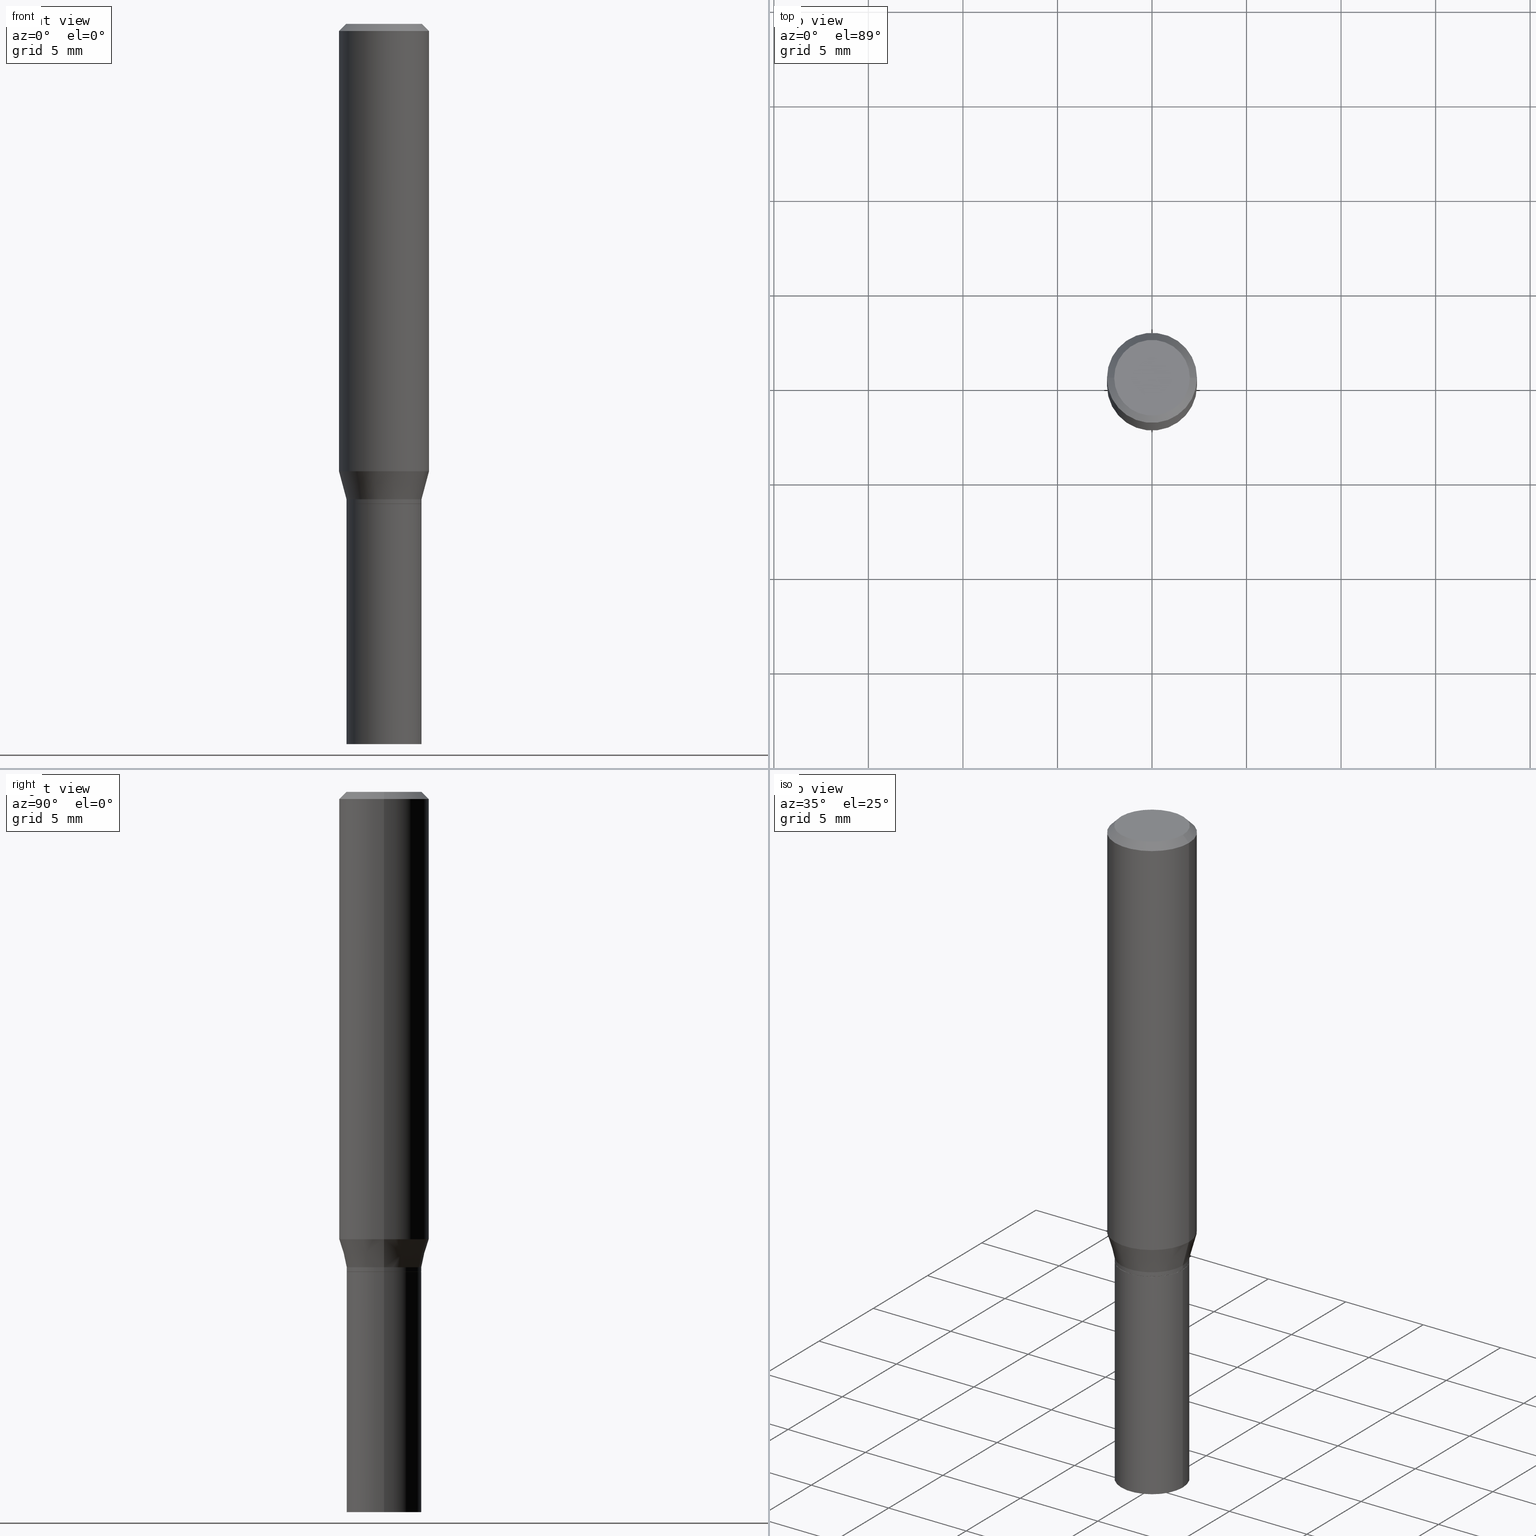
[diagram: canonical four-view strip — front | top / right | iso, engineering-drawing reading convention]
A machine part, canonical four-view strip (front | top / right | iso — engineering-drawing reading convention). The complete STEP part file that produces these views, byte-faithful:
ISO-10303-21;
HEADER;
FILE_DESCRIPTION (( 'STEP AP203' ),
    '1' );
FILE_NAME ('39319.STEP',
    '2024-03-12T18:58:39',
    ( '' ),
    ( '' ),
    'SwSTEP 2.0',
    'SolidWorks 2023',
    '' );
FILE_SCHEMA (( 'CONFIG_CONTROL_DESIGN' ));
ENDSEC;

DATA;
#1 = LOCAL_TIME ( 14, 58, 39.00000000000000000, #391 ) ;
#2 = LINE ( 'NONE', #140, #456 ) ;
#3 = EDGE_LOOP ( 'NONE', ( #298, #323, #429, #314 ) ) ;
#4 = FACE_OUTER_BOUND ( 'NONE', #363, .T. ) ;
#5 = UNCERTAINTY_MEASURE_WITH_UNIT (LENGTH_MEASURE( 1.000000000000000082E-05 ), #236, 'distance_accuracy_value', 'NONE');
#6 = EDGE_LOOP ( 'NONE', ( #394, #420, #331, #185 ) ) ;
#7 = ADVANCED_FACE ( 'NONE', ( #15 ), #55, .T. ) ;
#8 = AXIS2_PLACEMENT_3D ( 'NONE', #157, #133, #269 ) ;
#9 = DIRECTION ( 'NONE',  ( -2.445468806185136597E-29, 3.491481338843145583E-15, 1.000000000000000000 ) ) ;
#10 = VERTEX_POINT ( 'NONE', #403 ) ;
#11 = ORIENTED_EDGE ( 'NONE', *, *, #418, .T. ) ;
#12 = VERTEX_POINT ( 'NONE', #116 ) ;
#13 = DIRECTION ( 'NONE',  ( 2.445468806185136597E-29, -3.491481338843145583E-15, -1.000000000000000000 ) ) ;
#14 = AXIS2_PLACEMENT_3D ( 'NONE', #380, #65, #184 ) ;
#15 = FACE_OUTER_BOUND ( 'NONE', #386, .T. ) ;
#16 = CARTESIAN_POINT ( 'NONE',  ( 0.07810000000000004439, -4.001935910582012553E-15, -0.9900000000000001021 ) ) ;
#17 = PERSON_AND_ORGANIZATION ( #387, #226 ) ;
#18 = CYLINDRICAL_SURFACE ( 'NONE', #50, 0.09375000000000001388 ) ;
#19 = SHAPE_DEFINITION_REPRESENTATION ( #146, #395 ) ;
#20 = LENGTH_MEASURE_WITH_UNIT ( LENGTH_MEASURE( 0.02539999999999999897 ), #117 );
#21 = AXIS2_PLACEMENT_3D ( 'NONE', #176, #423, #455 ) ;
#22 = EDGE_CURVE ( 'NONE', #79, #434, #54, .T. ) ;
#23 = APPROVAL_STATUS ( 'not_yet_approved' ) ;
#24 = DIRECTION ( 'NONE',  ( 1.000000000000000000, -6.982962677686269077E-15, 0.000000000000000000 ) ) ;
#25 = LOCAL_TIME ( 14, 58, 39.00000000000000000, #98 ) ;
#26 = ADVANCED_FACE ( 'NONE', ( #85 ), #407, .T. ) ;
#27 = DIRECTION ( 'NONE',  ( 1.000000000000000000, -6.982962677686265922E-15, 4.876176775795935793E-29 ) ) ;
#28 = APPROVAL_ROLE ( '' ) ;
#29 = APPROVAL_DATE_TIME ( #276, #180 ) ;
#30 = CIRCLE ( 'NONE', #305, 0.09375000000000001388 ) ;
#31 = CONICAL_SURFACE ( 'NONE', #21, 0.09375000000000001388, 0.7853981633974473908 ) ;
#32 = DIRECTION ( 'NONE',  ( 1.000000000000000000, -6.982962677686265922E-15, 4.876176775795935793E-29 ) ) ;
#33 = CARTESIAN_POINT ( 'NONE',  ( 2.421014118123285332E-29, -3.456566525454714328E-15, -0.9900000000000001021 ) ) ;
#34 = AXIS2_PLACEMENT_3D ( 'NONE', #53, #365, #265 ) ;
#35 = DIRECTION ( 'NONE',  ( -2.445468806185136877E-29, 3.491481338843145188E-15, 1.000000000000000000 ) ) ;
#36 = VERTEX_POINT ( 'NONE', #438 ) ;
#37 = DIRECTION ( 'NONE',  ( 1.000000000000000000, -6.982962677686266711E-15, 0.000000000000000000 ) ) ;
#38 = VERTEX_POINT ( 'NONE', #48 ) ;
#39 = EDGE_CURVE ( 'NONE', #354, #114, #30, .T. ) ;
#40 = DIRECTION ( 'NONE',  ( 1.000000000000000000, -6.982962677686266711E-15, 4.876176775795935232E-29 ) ) ;
#41 = LINE ( 'NONE', #313, #302 ) ;
#42 = EDGE_LOOP ( 'NONE', ( #326, #229 ) ) ;
#43 = DIRECTION ( 'NONE',  ( -0.2588190451025214611, 5.211531920934550253E-15, 0.9659258262890679791 ) ) ;
#44 = VERTEX_POINT ( 'NONE', #297 ) ;
#45 = EDGE_CURVE ( 'NONE', #295, #10, #104, .T. ) ;
#46 = ORIENTED_EDGE ( 'NONE', *, *, #231, .T. ) ;
#47 = EDGE_LOOP ( 'NONE', ( #244, #46, #115, #255 ) ) ;
#48 = CARTESIAN_POINT ( 'NONE',  ( -0.07810000000000004439, -2.934801721545085420E-15, -0.9995000000000000551 ) ) ;
#49 = AXIS2_PLACEMENT_3D ( 'NONE', #51, #198, #199 ) ;
#50 = AXIS2_PLACEMENT_3D ( 'NONE', #93, #266, #27 ) ;
#51 = CARTESIAN_POINT ( 'NONE',  ( 2.445468806185136877E-29, -3.491481338843145977E-15, -1.000000000000000222 ) ) ;
#52 = CARTESIAN_POINT ( 'NONE',  ( 3.668203209277705088E-31, -5.237222008264718399E-17, -0.01499999999999999944 ) ) ;
#53 = CARTESIAN_POINT ( 'NONE',  ( 3.668203209277705088E-31, -5.237222008264718399E-17, -0.01499999999999999944 ) ) ;
#54 = LINE ( 'NONE', #169, #446 ) ;
#55 = CONICAL_SURFACE ( 'NONE', #307, 0.09375000000000001388, 0.7853981633974473908 ) ;
#56 = PERSON_AND_ORGANIZATION ( #387, #226 ) ;
#57 = VECTOR ( 'NONE', #275, 39.37007874015748143 ) ;
#58 = DIRECTION ( 'NONE',  ( -2.438088387897960049E-29, 3.491481338843145188E-15, 1.000000000000000000 ) ) ;
#59 = APPROVAL_STATUS ( 'not_yet_approved' ) ;
#60 = LOCAL_TIME ( 14, 58, 39.00000000000000000, #135 ) ;
#61 = PERSON_AND_ORGANIZATION_ROLE ( 'creator' ) ;
#62 = MECHANICAL_CONTEXT ( 'NONE', #171, 'mechanical' ) ;
#63 = CONICAL_SURFACE ( 'NONE', #214, 0.07760000000000000231, 0.7853981633974653764 ) ;
#64 = EDGE_CURVE ( 'NONE', #152, #44, #408, .T. ) ;
#65 = DIRECTION ( 'NONE',  ( -2.445468806185136597E-29, 3.491481338843145583E-15, 1.000000000000000000 ) ) ;
#66 = LOCAL_TIME ( 14, 58, 39.00000000000000000, #448 ) ;
#67 = PERSON_AND_ORGANIZATION ( #387, #226 ) ;
#68 = EDGE_CURVE ( 'NONE', #36, #114, #445, .T. ) ;
#69 = AXIS2_PLACEMENT_3D ( 'NONE', #401, #166, #154 ) ;
#70 = CARTESIAN_POINT ( 'NONE',  ( 2.421014118123285332E-29, -3.456566525454714328E-15, -0.9900000000000001021 ) ) ;
#71 = ORIENTED_EDGE ( 'NONE', *, *, #330, .F. ) ;
#72 = DIRECTION ( 'NONE',  ( 1.000000000000000000, -6.982962677686266711E-15, 4.876176775795936353E-29 ) ) ;
#73 = CARTESIAN_POINT ( 'NONE',  ( -0.07760000000000000231, -2.940100175893308216E-15, -1.000000000000000222 ) ) ;
#74 = ORIENTED_EDGE ( 'NONE', *, *, #262, .T. ) ;
#75 = DIRECTION ( 'NONE',  ( -2.445468806185136597E-29, 3.491481338843145583E-15, 1.000000000000000000 ) ) ;
#76 = ORIENTED_EDGE ( 'NONE', *, *, #219, .F. ) ;
#77 = ORIENTED_EDGE ( 'NONE', *, *, #388, .T. ) ;
#78 = CARTESIAN_POINT ( 'NONE',  ( 0.09375000000000001388, -7.070249711157346819E-16, -0.01499999999999999944 ) ) ;
#79 = VERTEX_POINT ( 'NONE', #230 ) ;
#80 = DIRECTION ( 'NONE',  ( 1.000000000000000000, -6.982962677686265922E-15, 4.876176775795935793E-29 ) ) ;
#81 = DIRECTION ( 'NONE',  ( -2.445468806185136877E-29, 3.491481338843145188E-15, 1.000000000000000000 ) ) ;
#82 = VERTEX_POINT ( 'NONE', #402 ) ;
#83 = ADVANCED_FACE ( 'NONE', ( #202 ), #332, .F. ) ;
#84 = AXIS2_PLACEMENT_3D ( 'NONE', #381, #285, #151 ) ;
#85 = FACE_OUTER_BOUND ( 'NONE', #47, .T. ) ;
#86 = DIRECTION ( 'NONE',  ( 1.000000000000000000, -6.982962677686266711E-15, 4.876176775795936353E-29 ) ) ;
#87 = PLANE ( 'NONE',  #393 ) ;
#88 = DATE_AND_TIME ( #368, #25 ) ;
#89 = ORIENTED_EDGE ( 'NONE', *, *, #173, .T. ) ;
#90 = AXIS2_PLACEMENT_3D ( 'NONE', #142, #344, #95 ) ;
#91 = ADVANCED_FACE ( 'NONE', ( #167 ), #63, .T. ) ;
#92 = DATE_TIME_ROLE ( 'classification_date' ) ;
#93 = CARTESIAN_POINT ( 'NONE',  ( 0.000000000000000000, 0.000000000000000000, 0.000000000000000000 ) ) ;
#94 = DIRECTION ( 'NONE',  ( 2.438088387897960049E-29, -3.491481338843145188E-15, -1.000000000000000000 ) ) ;
#95 = DIRECTION ( 'NONE',  ( -1.000000000000000000, 6.982962677686265922E-15, -4.876176775795935793E-29 ) ) ;
#96 = CONICAL_SURFACE ( 'NONE', #69, 0.07810000000000004439, 0.2617993877991501850 ) ;
#97 = LINE ( 'NONE', #164, #410 ) ;
#98 = COORDINATED_UNIVERSAL_TIME_OFFSET ( 5, 0, .BEHIND. ) ;
#99 = CALENDAR_DATE ( 2024, 12, 3 ) ;
#100 = FACE_OUTER_BOUND ( 'NONE', #322, .T. ) ;
#101 = CARTESIAN_POINT ( 'NONE',  ( -0.07875000000000001443, 5.760944209091169839E-16, 1.724453912998643423E-17 ) ) ;
#102 = DIRECTION ( 'NONE',  ( 1.000000000000000000, 0.000000000000000000, 0.000000000000000000 ) ) ;
#103 = ORIENTED_EDGE ( 'NONE', *, *, #132, .T. ) ;
#104 = CIRCLE ( 'NONE', #287, 0.07875000000000001443 ) ;
#105 = CIRCLE ( 'NONE', #121, 0.07810000000000004439 ) ;
#106 = DIRECTION ( 'NONE',  ( 1.000000000000000000, -6.982962677686266711E-15, 0.000000000000000000 ) ) ;
#107 = ORIENTED_EDGE ( 'NONE', *, *, #246, .T. ) ;
#108 = CARTESIAN_POINT ( 'NONE',  ( 2.444246071782044356E-29, -3.489735598173724079E-15, -0.9995000000000000551 ) ) ;
#109 = ORIENTED_EDGE ( 'NONE', *, *, #239, .F. ) ;
#110 = FACE_OUTER_BOUND ( 'NONE', #223, .T. ) ;
#111 = EDGE_CURVE ( 'NONE', #434, #38, #235, .T. ) ;
#112 = ORIENTED_EDGE ( 'NONE', *, *, #238, .T. ) ;
#113 = AXIS2_PLACEMENT_3D ( 'NONE', #413, #94, #124 ) ;
#114 = VERTEX_POINT ( 'NONE', #118 ) ;
#115 = ORIENTED_EDGE ( 'NONE', *, *, #111, .F. ) ;
#116 = CARTESIAN_POINT ( 'NONE',  ( -0.07810000000000000275, -3.809417796925293812E-15, -1.000000000000000222 ) ) ;
#117 =( LENGTH_UNIT ( ) NAMED_UNIT ( * ) SI_UNIT ( $, .METRE. ) );
#118 = CARTESIAN_POINT ( 'NONE',  ( -0.09375000000000001388, -9.863727894979499703E-16, -0.01499999999999999944 ) ) ;
#119 = ADVANCED_FACE ( 'NONE', ( #366 ), #87, .F. ) ;
#120 = DIRECTION ( 'NONE',  ( -2.445468806185136597E-29, 3.491481338843145583E-15, 1.000000000000000000 ) ) ;
#121 = AXIS2_PLACEMENT_3D ( 'NONE', #108, #385, #390 ) ;
#122 = CARTESIAN_POINT ( 'NONE',  ( 2.444246071782044356E-29, -3.489735598173724079E-15, -0.9995000000000000551 ) ) ;
#123 = EDGE_CURVE ( 'NONE', #44, #152, #204, .T. ) ;
#124 = DIRECTION ( 'NONE',  ( -1.000000000000000000, 6.982962677686265922E-15, -4.876176775795935793E-29 ) ) ;
#125 = CC_DESIGN_SECURITY_CLASSIFICATION ( #312, ( #206 ) ) ;
#126 = CARTESIAN_POINT ( 'NONE',  ( -0.09375000000000001388, 6.661338147750940229E-16, -4.611501647113973995E-30 ) ) ;
#127 =( GEOMETRIC_REPRESENTATION_CONTEXT ( 3 ) GLOBAL_UNCERTAINTY_ASSIGNED_CONTEXT ( ( #5 ) ) GLOBAL_UNIT_ASSIGNED_CONTEXT ( ( #236, #272, #374 ) ) REPRESENTATION_CONTEXT ( 'NONE', 'WORKASPACE' ) );
#128 = EDGE_CURVE ( 'NONE', #79, #82, #168, .T. ) ;
#129 = CARTESIAN_POINT ( 'NONE',  ( 0.07810000000000004439, -4.035104983301021910E-15, -0.9995000000000000551 ) ) ;
#130 = PERSON_AND_ORGANIZATION ( #387, #226 ) ;
#131 = CARTESIAN_POINT ( 'NONE',  ( 0.07810000000000004439, -4.001935910582012553E-15, -0.9900000000000001021 ) ) ;
#132 = EDGE_CURVE ( 'NONE', #38, #218, #377, .T. ) ;
#133 = DIRECTION ( 'NONE',  ( -2.445468806185136597E-29, 3.491481338843145583E-15, 1.000000000000000000 ) ) ;
#134 = CYLINDRICAL_SURFACE ( 'NONE', #333, 0.09375000000000001388 ) ;
#135 = COORDINATED_UNIVERSAL_TIME_OFFSET ( 5, 0, .BEHIND. ) ;
#136 = DIRECTION ( 'NONE',  ( -2.445468806185136877E-29, 3.491481338843145188E-15, 1.000000000000000000 ) ) ;
#137 = MANIFOLD_SOLID_BREP ( 'Body-Move/Copy2[2]', #155 ) ;
#138 = DATE_TIME_ROLE ( 'creation_date' ) ;
#139 = VECTOR ( 'NONE', #259, 39.37007874015748143 ) ;
#140 = CARTESIAN_POINT ( 'NONE',  ( 0.07810000000000000275, -5.453693851272974364E-16, 3.808294061896625703E-30 ) ) ;
#141 = CC_DESIGN_PERSON_AND_ORGANIZATION_ASSIGNMENT ( #17, #437, ( #206 ) ) ;
#142 = CARTESIAN_POINT ( 'NONE',  ( 5.499083108677934443E-16, 0.07875000000000001443, -2.663318858689025652E-16 ) ) ;
#143 = DIRECTION ( 'NONE',  ( -2.445468806185136597E-29, 3.491481338843145583E-15, 1.000000000000000000 ) ) ;
#144 = ORIENTED_EDGE ( 'NONE', *, *, #424, .F. ) ;
#145 = CARTESIAN_POINT ( 'NONE',  ( 0.09375000000000001388, -6.955439073737282618E-16, -0.01499999999999999944 ) ) ;
#146 = PRODUCT_DEFINITION_SHAPE ( 'NONE', 'NONE',  #449 ) ;
#147 = VERTEX_POINT ( 'NONE', #355 ) ;
#148 = CARTESIAN_POINT ( 'NONE',  ( -0.07810000000000000275, 5.549338766286382647E-16, -3.841688305489081275E-30 ) ) ;
#149 = ORIENTED_EDGE ( 'NONE', *, *, #170, .T. ) ;
#150 = AXIS2_PLACEMENT_3D ( 'NONE', #33, #191, #237 ) ;
#151 = DIRECTION ( 'NONE',  ( 1.000000000000000000, -6.982962677686266711E-15, 0.000000000000000000 ) ) ;
#152 = VERTEX_POINT ( 'NONE', #195 ) ;
#153 = MANIFOLD_SOLID_BREP ( 'Body-Move/Copy2[1]', #399 ) ;
#154 = DIRECTION ( 'NONE',  ( 1.000000000000000000, -6.982962677686269077E-15, 0.000000000000000000 ) ) ;
#155 = CLOSED_SHELL ( 'NONE', ( #358, #26, #7, #165, #426, #158, #268, #337, #318, #83, #91, #345 ) ) ;
#156 = AXIS2_PLACEMENT_3D ( 'NONE', #122, #299, #436 ) ;
#157 = CARTESIAN_POINT ( 'NONE',  ( 2.445468806185136877E-29, -3.491481338843145977E-15, -1.000000000000000222 ) ) ;
#158 = ADVANCED_FACE ( 'NONE', ( #4 ), #96, .T. ) ;
#159 = EDGE_LOOP ( 'NONE', ( #109, #348, #89, #76 ) ) ;
#160 = PRODUCT_RELATED_PRODUCT_CATEGORY ( 'detail', '', ( #251 ) ) ;
#161 = APPROVAL_DATE_TIME ( #88, #464 ) ;
#162 = LOCAL_TIME ( 14, 58, 39.00000000000000000, #207 ) ;
#163 = ORIENTED_EDGE ( 'NONE', *, *, #210, .F. ) ;
#164 = CARTESIAN_POINT ( 'NONE',  ( 0.07810000000000004439, -5.453693851272977322E-16, 3.808294061896628505E-30 ) ) ;
#165 = ADVANCED_FACE ( 'NONE', ( #274 ), #134, .T. ) ;
#166 = DIRECTION ( 'NONE',  ( -2.445468806185136597E-29, 3.491481338843145583E-15, 1.000000000000000000 ) ) ;
#167 = FACE_OUTER_BOUND ( 'NONE', #392, .T. ) ;
#168 = CIRCLE ( 'NONE', #8, 0.07760000000000000231 ) ;
#169 = CARTESIAN_POINT ( 'NONE',  ( 0.07760000000000000231, -4.033359242631600406E-15, -1.000000000000000222 ) ) ;
#170 = EDGE_CURVE ( 'NONE', #38, #434, #105, .T. ) ;
#171 = APPLICATION_CONTEXT ( 'configuration controlled 3d designs of mechanical parts and assemblies' ) ;
#172 = CIRCLE ( 'NONE', #14, 0.07875000000000001443 ) ;
#173 = EDGE_CURVE ( 'NONE', #152, #216, #2, .T. ) ;
#174 = APPROVAL_ROLE ( '' ) ;
#175 = CARTESIAN_POINT ( 'NONE',  ( -0.07810000000000004439, 5.549338766286385606E-16, -3.841688305489084077E-30 ) ) ;
#176 = CARTESIAN_POINT ( 'NONE',  ( 3.668203209277705088E-31, -5.237222008264718399E-17, -0.01499999999999999944 ) ) ;
#177 = CARTESIAN_POINT ( 'NONE',  ( 0.000000000000000000, 0.000000000000000000, 0.000000000000000000 ) ) ;
#178 = CIRCLE ( 'NONE', #343, 0.07810000000000004439 ) ;
#179 = DIRECTION ( 'NONE',  ( 1.000000000000000000, -6.982962677686266711E-15, 4.876176775795935232E-29 ) ) ;
#180 = APPROVAL ( #23, 'UNSPECIFIED' ) ;
#181 = CARTESIAN_POINT ( 'NONE',  ( 2.445468806185136877E-29, -3.491481338843145977E-15, -1.000000000000000222 ) ) ;
#182 = APPROVAL_PERSON_ORGANIZATION ( #277, #464, #28 ) ;
#183 = EDGE_LOOP ( 'NONE', ( #460, #431 ) ) ;
#184 = DIRECTION ( 'NONE',  ( 1.000000000000000000, -6.982962677686267499E-15, 4.876807983162778740E-29 ) ) ;
#185 = ORIENTED_EDGE ( 'NONE', *, *, #404, .T. ) ;
#186 = CIRCLE ( 'NONE', #270, 0.07810000000000000275 ) ;
#187 = ORIENTED_EDGE ( 'NONE', *, *, #273, .F. ) ;
#188 = LINE ( 'NONE', #73, #361 ) ;
#189 = CC_DESIGN_APPROVAL ( #180, ( #449 ) ) ;
#190 = ORIENTED_EDGE ( 'NONE', *, *, #123, .F. ) ;
#191 = DIRECTION ( 'NONE',  ( -2.445468806185136597E-29, 3.491481338843145583E-15, 1.000000000000000000 ) ) ;
#192 = EDGE_CURVE ( 'NONE', #218, #36, #41, .T. ) ;
#193 = DESIGN_CONTEXT ( 'detailed design', #233, 'design' ) ;
#194 = ORIENTED_EDGE ( 'NONE', *, *, #388, .F. ) ;
#195 = CARTESIAN_POINT ( 'NONE',  ( 0.07810000000000000275, -5.782591393392015613E-15, -1.500000000000000222 ) ) ;
#196 = APPLICATION_PROTOCOL_DEFINITION ( 'international standard', 'config_control_design', 1994, #171 ) ;
#197 = AXIS2_PLACEMENT_3D ( 'NONE', #349, #465, #428 ) ;
#198 = DIRECTION ( 'NONE',  ( -2.445468806185136597E-29, 3.491481338843145583E-15, 1.000000000000000000 ) ) ;
#199 = DIRECTION ( 'NONE',  ( 1.000000000000000000, -6.982962677686266711E-15, 0.000000000000000000 ) ) ;
#200 = CYLINDRICAL_SURFACE ( 'NONE', #370, 0.07810000000000004439 ) ;
#201 = ADVANCED_FACE ( 'NONE', ( #252 ), #249, .T. ) ;
#202 = FACE_OUTER_BOUND ( 'NONE', #183, .T. ) ;
#203 = DIRECTION ( 'NONE',  ( 1.000000000000000000, -6.982962677686265922E-15, 0.000000000000000000 ) ) ;
#204 = CIRCLE ( 'NONE', #432, 0.07810000000000000275 ) ;
#205 = ORIENTED_EDGE ( 'NONE', *, *, #192, .T. ) ;
#206 = PRODUCT_DEFINITION_FORMATION_WITH_SPECIFIED_SOURCE ( 'ANY', '', #251, .NOT_KNOWN. ) ;
#207 = COORDINATED_UNIVERSAL_TIME_OFFSET ( 5, 0, .BEHIND. ) ;
#208 = CC_DESIGN_PERSON_AND_ORGANIZATION_ASSIGNMENT ( #67, #61, ( #449 ) ) ;
#209 = APPLICATION_PROTOCOL_DEFINITION ( 'international standard', 'config_control_design', 1994, #233 ) ;
#210 = EDGE_CURVE ( 'NONE', #435, #218, #415, .T. ) ;
#211 = PERSON_AND_ORGANIZATION ( #387, #226 ) ;
#212 = LINE ( 'NONE', #16, #57 ) ;
#213 = PERSON_AND_ORGANIZATION ( #387, #226 ) ;
#214 = AXIS2_PLACEMENT_3D ( 'NONE', #397, #303, #442 ) ;
#215 = LINE ( 'NONE', #148, #439 ) ;
#216 = VERTEX_POINT ( 'NONE', #292 ) ;
#217 = DIRECTION ( 'NONE',  ( 0.000000000000000000, 0.000000000000000000, 1.000000000000000000 ) ) ;
#218 = VERTEX_POINT ( 'NONE', #353 ) ;
#219 = EDGE_CURVE ( 'NONE', #12, #216, #186, .T. ) ;
#220 = EDGE_LOOP ( 'NONE', ( #289, #149, #357, #194 ) ) ;
#221 = CIRCLE ( 'NONE', #84, 0.07810000000000000275 ) ;
#222 = CARTESIAN_POINT ( 'NONE',  ( 0.000000000000000000, 0.000000000000000000, 0.000000000000000000 ) ) ;
#223 = EDGE_LOOP ( 'NONE', ( #247, #74, #11, #224 ) ) ;
#224 = ORIENTED_EDGE ( 'NONE', *, *, #404, .F. ) ;
#225 = CC_DESIGN_DATE_AND_TIME_ASSIGNMENT ( #341, #138, ( #449 ) ) ;
#226 = ORGANIZATION ( 'UNSPECIFIED', 'UNSPECIFIED', '' ) ;
#227 = DIRECTION ( 'NONE',  ( -2.438088387897960049E-29, 3.491481338843145188E-15, 1.000000000000000000 ) ) ;
#228 = CALENDAR_DATE ( 2024, 12, 3 ) ;
#229 = ORIENTED_EDGE ( 'NONE', *, *, #330, .T. ) ;
#230 = CARTESIAN_POINT ( 'NONE',  ( 0.07760000000000000231, -4.033359242631600406E-15, -1.000000000000000222 ) ) ;
#231 = EDGE_CURVE ( 'NONE', #82, #38, #188, .T. ) ;
#232 = CARTESIAN_POINT ( 'NONE',  ( 3.576687321579069994E-29, -5.368277968210015545E-15, -1.500000000000000222 ) ) ;
#233 = APPLICATION_CONTEXT ( 'configuration controlled 3d designs of mechanical parts and assemblies' ) ;
#234 = CARTESIAN_POINT ( 'NONE',  ( 3.668203209277705088E-31, -5.237222008264718399E-17, -0.01499999999999999944 ) ) ;
#235 = CIRCLE ( 'NONE', #156, 0.07810000000000004439 ) ;
#236 =( CONVERSION_BASED_UNIT ( 'INCH', #20 ) LENGTH_UNIT ( ) NAMED_UNIT ( #327 ) );
#237 = DIRECTION ( 'NONE',  ( 1.000000000000000000, -6.982962677686269077E-15, 0.000000000000000000 ) ) ;
#238 = EDGE_CURVE ( 'NONE', #216, #12, #221, .T. ) ;
#239 = EDGE_CURVE ( 'NONE', #44, #12, #215, .T. ) ;
#240 = DIRECTION ( 'NONE',  ( -2.445468806185136877E-29, 3.491481338843145188E-15, 1.000000000000000000 ) ) ;
#241 = DIRECTION ( 'NONE',  ( -2.445468806185136597E-29, 3.491481338843145583E-15, 1.000000000000000000 ) ) ;
#242 = CYLINDRICAL_SURFACE ( 'NONE', #339, 0.07810000000000000275 ) ;
#243 = DIRECTION ( 'NONE',  ( -0.7071067811865595631, 7.493145998870398336E-15, 0.7071067811865354713 ) ) ;
#244 = ORIENTED_EDGE ( 'NONE', *, *, #128, .T. ) ;
#245 = CIRCLE ( 'NONE', #197, 0.09375000000000001388 ) ;
#246 = EDGE_CURVE ( 'NONE', #82, #79, #306, .T. ) ;
#247 = ORIENTED_EDGE ( 'NONE', *, *, #68, .F. ) ;
#248 = LINE ( 'NONE', #281, #422 ) ;
#249 = CYLINDRICAL_SURFACE ( 'NONE', #400, 0.07810000000000000275 ) ;
#250 = ORIENTED_EDGE ( 'NONE', *, *, #262, .F. ) ;
#251 = PRODUCT ( '39319', '39319', '', ( #62 ) ) ;
#252 = FACE_OUTER_BOUND ( 'NONE', #3, .T. ) ;
#253 = ORIENTED_EDGE ( 'NONE', *, *, #219, .T. ) ;
#254 = AXIS2_PLACEMENT_3D ( 'NONE', #261, #9, #263 ) ;
#255 = ORIENTED_EDGE ( 'NONE', *, *, #22, .F. ) ;
#256 = EDGE_CURVE ( 'NONE', #147, #36, #383, .T. ) ;
#257 = EDGE_CURVE ( 'NONE', #10, #354, #462, .T. ) ;
#258 = CC_DESIGN_APPROVAL ( #464, ( #206 ) ) ;
#259 = DIRECTION ( 'NONE',  ( -2.445468806185136877E-29, 3.491481338843145188E-15, 1.000000000000000000 ) ) ;
#260 = DIRECTION ( 'NONE',  ( 1.000000000000000000, -6.982962677686266711E-15, 0.000000000000000000 ) ) ;
#261 = CARTESIAN_POINT ( 'NONE',  ( 3.668203209277704895E-29, -5.237222008264718177E-15, -1.500000000000000222 ) ) ;
#262 = EDGE_CURVE ( 'NONE', #36, #147, #245, .T. ) ;
#263 = DIRECTION ( 'NONE',  ( 1.000000000000000000, -6.982962677686266711E-15, 0.000000000000000000 ) ) ;
#264 = APPROVAL_PERSON_ORGANIZATION ( #373, #352, #450 ) ;
#265 = DIRECTION ( 'NONE',  ( 1.000000000000000000, -6.982962677686265922E-15, 0.000000000000000000 ) ) ;
#266 = DIRECTION ( 'NONE',  ( -2.445468806185136597E-29, 3.491481338843145583E-15, 1.000000000000000000 ) ) ;
#267 = CARTESIAN_POINT ( 'NONE',  ( 2.445468806185136877E-29, -3.491481338843145977E-15, -1.000000000000000222 ) ) ;
#268 = ADVANCED_FACE ( 'NONE', ( #110 ), #18, .T. ) ;
#269 = DIRECTION ( 'NONE',  ( 1.000000000000000000, -6.982962677686266711E-15, 0.000000000000000000 ) ) ;
#270 = AXIS2_PLACEMENT_3D ( 'NONE', #458, #143, #419 ) ;
#271 = VECTOR ( 'NONE', #136, 39.37007874015748143 ) ;
#272 =( NAMED_UNIT ( * ) PLANE_ANGLE_UNIT ( ) SI_UNIT ( $, .RADIAN. ) );
#273 = EDGE_CURVE ( 'NONE', #435, #147, #212, .T. ) ;
#274 = FACE_OUTER_BOUND ( 'NONE', #466, .T. ) ;
#275 = DIRECTION ( 'NONE',  ( 0.2588190451025214611, 1.565188264969620982E-15, 0.9659258262890679791 ) ) ;
#276 = DATE_AND_TIME ( #99, #60 ) ;
#277 = PERSON_AND_ORGANIZATION ( #387, #226 ) ;
#278 = AXIS2_PLACEMENT_3D ( 'NONE', #267, #227, #398 ) ;
#279 = CIRCLE ( 'NONE', #34, 0.09375000000000001388 ) ;
#280 = CARTESIAN_POINT ( 'NONE',  ( 0.000000000000000000, 0.000000000000000000, 0.000000000000000000 ) ) ;
#281 = CARTESIAN_POINT ( 'NONE',  ( -0.09375000000000001388, 6.022805309504404249E-16, -0.01499999999999999944 ) ) ;
#282 = DIRECTION ( 'NONE',  ( -2.445468806185136597E-29, 3.491481338843145583E-15, 1.000000000000000000 ) ) ;
#283 = ORIENTED_EDGE ( 'NONE', *, *, #111, .T. ) ;
#284 = DIRECTION ( 'NONE',  ( -2.445468806185136597E-29, 3.491481338843145583E-15, 1.000000000000000000 ) ) ;
#285 = DIRECTION ( 'NONE',  ( -2.445468806185136597E-29, 3.491481338843145583E-15, 1.000000000000000000 ) ) ;
#286 = ORIENTED_EDGE ( 'NONE', *, *, #64, .F. ) ;
#287 = AXIS2_PLACEMENT_3D ( 'NONE', #359, #328, #304 ) ;
#288 = DIRECTION ( 'NONE',  ( 0.7071067811865469066, -7.319954787623254468E-15, -0.7071067811865481278 ) ) ;
#289 = ORIENTED_EDGE ( 'NONE', *, *, #132, .F. ) ;
#290 = ADVANCED_FACE ( 'NONE', ( #414 ), #242, .T. ) ;
#291 = EDGE_LOOP ( 'NONE', ( #286, #190 ) ) ;
#292 = CARTESIAN_POINT ( 'NONE',  ( 0.07810000000000000275, -4.036850723970443413E-15, -1.000000000000000222 ) ) ;
#293 = FACE_OUTER_BOUND ( 'NONE', #427, .T. ) ;
#294 = ORIENTED_EDGE ( 'NONE', *, *, #192, .F. ) ;
#295 = VERTEX_POINT ( 'NONE', #101 ) ;
#296 = AXIS2_PLACEMENT_3D ( 'NONE', #430, #347, #37 ) ;
#297 = CARTESIAN_POINT ( 'NONE',  ( -0.07810000000000000275, -3.809417796925293812E-15, -1.500000000000000222 ) ) ;
#298 = ORIENTED_EDGE ( 'NONE', *, *, #64, .T. ) ;
#299 = DIRECTION ( 'NONE',  ( -2.445468806185136597E-29, 3.491481338843145583E-15, 1.000000000000000000 ) ) ;
#300 = DIRECTION ( 'NONE',  ( -1.000000000000000000, 6.982962677686265922E-15, 0.000000000000000000 ) ) ;
#301 = PLANE ( 'NONE',  #113 ) ;
#302 = VECTOR ( 'NONE', #43, 39.37007874015748143 ) ;
#303 = DIRECTION ( 'NONE',  ( -2.445468806185136597E-29, 3.491481338843145583E-15, 1.000000000000000000 ) ) ;
#304 = DIRECTION ( 'NONE',  ( 1.000000000000000000, -6.982962677686267499E-15, 4.876807983162778740E-29 ) ) ;
#305 = AXIS2_PLACEMENT_3D ( 'NONE', #234, #120, #203 ) ;
#306 = CIRCLE ( 'NONE', #324, 0.07760000000000000231 ) ;
#307 = AXIS2_PLACEMENT_3D ( 'NONE', #52, #13, #300 ) ;
#308 = AXIS2_PLACEMENT_3D ( 'NONE', #311, #284, #72 ) ;
#309 = FACE_OUTER_BOUND ( 'NONE', #42, .T. ) ;
#310 = DIRECTION ( 'NONE',  ( -2.445468806185136597E-29, 3.491481338843145583E-15, 1.000000000000000000 ) ) ;
#311 = CARTESIAN_POINT ( 'NONE',  ( 0.000000000000000000, 0.000000000000000000, 0.000000000000000000 ) ) ;
#312 = SECURITY_CLASSIFICATION ( '', '', #372 ) ;
#313 = CARTESIAN_POINT ( 'NONE',  ( -0.07810000000000004439, -2.901632648826075669E-15, -0.9900000000000001021 ) ) ;
#314 = ORIENTED_EDGE ( 'NONE', *, *, #173, .F. ) ;
#315 = DIRECTION ( 'NONE',  ( -2.445468806185136877E-29, 3.491481338843145188E-15, 1.000000000000000000 ) ) ;
#316 = ORIENTED_EDGE ( 'NONE', *, *, #256, .F. ) ;
#317 = VECTOR ( 'NONE', #81, 39.37007874015748143 ) ;
#318 = ADVANCED_FACE ( 'NONE', ( #309 ), #342, .F. ) ;
#319 = DIRECTION ( 'NONE',  ( 1.000000000000000000, -6.982962677686269077E-15, 0.000000000000000000 ) ) ;
#320 = ORIENTED_EDGE ( 'NONE', *, *, #273, .T. ) ;
#321 = EDGE_LOOP ( 'NONE', ( #112, #253 ) ) ;
#322 = EDGE_LOOP ( 'NONE', ( #283, #103, #163, #144 ) ) ;
#323 = ORIENTED_EDGE ( 'NONE', *, *, #239, .T. ) ;
#324 = AXIS2_PLACEMENT_3D ( 'NONE', #181, #459, #106 ) ;
#325 = ORIENTED_EDGE ( 'NONE', *, *, #39, .F. ) ;
#326 = ORIENTED_EDGE ( 'NONE', *, *, #45, .T. ) ;
#327 = DIMENSIONAL_EXPONENTS ( 1.000000000000000000, 0.000000000000000000, 0.000000000000000000, 0.000000000000000000, 0.000000000000000000, 0.000000000000000000, 0.000000000000000000 ) ;
#328 = DIRECTION ( 'NONE',  ( -2.445468806185136597E-29, 3.491481338843145583E-15, 1.000000000000000000 ) ) ;
#329 = LINE ( 'NONE', #453, #271 ) ;
#330 = EDGE_CURVE ( 'NONE', #10, #295, #172, .T. ) ;
#331 = ORIENTED_EDGE ( 'NONE', *, *, #335, .T. ) ;
#332 = PLANE ( 'NONE',  #278 ) ;
#333 = AXIS2_PLACEMENT_3D ( 'NONE', #425, #282, #32 ) ;
#334 = ORIENTED_EDGE ( 'NONE', *, *, #68, .T. ) ;
#335 = EDGE_CURVE ( 'NONE', #295, #114, #248, .T. ) ;
#336 = ORIENTED_EDGE ( 'NONE', *, *, #257, .T. ) ;
#337 = ADVANCED_FACE ( 'NONE', ( #461 ), #31, .T. ) ;
#338 = APPROVAL_DATE_TIME ( #440, #352 ) ;
#339 = AXIS2_PLACEMENT_3D ( 'NONE', #177, #457, #40 ) ;
#340 = DIRECTION ( 'NONE',  ( -0.7071067811865469066, 2.468850131082250355E-15, -0.7071067811865481278 ) ) ;
#341 = DATE_AND_TIME ( #454, #66 ) ;
#342 = PLANE ( 'NONE',  #90 ) ;
#343 = AXIS2_PLACEMENT_3D ( 'NONE', #367, #378, #24 ) ;
#344 = DIRECTION ( 'NONE',  ( 2.438088387897960049E-29, -3.491481338843145188E-15, -1.000000000000000000 ) ) ;
#345 = ADVANCED_FACE ( 'NONE', ( #417 ), #379, .T. ) ;
#346 = ORIENTED_EDGE ( 'NONE', *, *, #39, .T. ) ;
#347 = DIRECTION ( 'NONE',  ( -2.445468806185136597E-29, 3.491481338843145583E-15, 1.000000000000000000 ) ) ;
#348 = ORIENTED_EDGE ( 'NONE', *, *, #123, .T. ) ;
#349 = CARTESIAN_POINT ( 'NONE',  ( 2.278182611636715174E-29, -3.252640988463440710E-15, -0.9315934048615475138 ) ) ;
#350 = ORIENTED_EDGE ( 'NONE', *, *, #170, .F. ) ;
#351 = AXIS2_PLACEMENT_3D ( 'NONE', #70, #310, #319 ) ;
#352 = APPROVAL ( #59, 'UNSPECIFIED' ) ;
#353 = CARTESIAN_POINT ( 'NONE',  ( -0.07810000000000004439, -2.744069911257211227E-15, -0.9900000000000001021 ) ) ;
#354 = VERTEX_POINT ( 'NONE', #78 ) ;
#355 = CARTESIAN_POINT ( 'NONE',  ( 0.09375000000000001388, -3.907293739496527425E-15, -0.9315934048615475138 ) ) ;
#356 = ORIENTED_EDGE ( 'NONE', *, *, #418, .F. ) ;
#357 = ORIENTED_EDGE ( 'NONE', *, *, #424, .T. ) ;
#358 = ADVANCED_FACE ( 'NONE', ( #100 ), #200, .T. ) ;
#359 = CARTESIAN_POINT ( 'NONE',  ( -4.217098251943042903E-46, 6.020898656931179793E-32, 1.724453912999037237E-17 ) ) ;
#360 = ADVANCED_FACE ( 'NONE', ( #443 ), #301, .F. ) ;
#361 = VECTOR ( 'NONE', #243, 39.37007874015748143 ) ;
#362 = CC_DESIGN_PERSON_AND_ORGANIZATION_ASSIGNMENT ( #56, #406, ( #206 ) ) ;
#363 = EDGE_LOOP ( 'NONE', ( #294, #77, #320, #250 ) ) ;
#364 = DIRECTION ( 'NONE',  ( 0.7071067811865595631, -2.468850131082382884E-15, 0.7071067811865354713 ) ) ;
#365 = DIRECTION ( 'NONE',  ( -2.445468806185136597E-29, 3.491481338843145583E-15, 1.000000000000000000 ) ) ;
#366 = FACE_OUTER_BOUND ( 'NONE', #291, .T. ) ;
#367 = CARTESIAN_POINT ( 'NONE',  ( 2.421014118123285332E-29, -3.456566525454714328E-15, -0.9900000000000001021 ) ) ;
#368 = CALENDAR_DATE ( 2024, 12, 3 ) ;
#369 = CC_DESIGN_DATE_AND_TIME_ASSIGNMENT ( #409, #92, ( #312 ) ) ;
#370 = AXIS2_PLACEMENT_3D ( 'NONE', #280, #241, #86 ) ;
#371 = DIRECTION ( 'NONE',  ( -2.445468806185136597E-29, 3.491481338843145583E-15, 1.000000000000000000 ) ) ;
#372 = SECURITY_CLASSIFICATION_LEVEL ( 'unclassified' ) ;
#373 = PERSON_AND_ORGANIZATION ( #387, #226 ) ;
#374 =( NAMED_UNIT ( * ) SI_UNIT ( $, .STERADIAN. ) SOLID_ANGLE_UNIT ( ) );
#375 = PERSON_AND_ORGANIZATION_ROLE ( 'classification_officer' ) ;
#376 = VECTOR ( 'NONE', #288, 39.37007874015748143 ) ;
#377 = LINE ( 'NONE', #175, #317 ) ;
#378 = DIRECTION ( 'NONE',  ( -2.445468806185136597E-29, 3.491481338843145583E-15, 1.000000000000000000 ) ) ;
#379 = CYLINDRICAL_SURFACE ( 'NONE', #308, 0.07810000000000004439 ) ;
#380 = CARTESIAN_POINT ( 'NONE',  ( -4.217098251943042903E-46, 6.020898656931179793E-32, 1.724453912999037237E-17 ) ) ;
#381 = CARTESIAN_POINT ( 'NONE',  ( 2.445468806185136877E-29, -3.491481338843145977E-15, -1.000000000000000222 ) ) ;
#382 = ORIENTED_EDGE ( 'NONE', *, *, #256, .T. ) ;
#383 = CIRCLE ( 'NONE', #296, 0.09375000000000001388 ) ;
#384 = CARTESIAN_POINT ( 'NONE',  ( 0.000000000000000000, 0.000000000000000000, 0.000000000000000000 ) ) ;
#385 = DIRECTION ( 'NONE',  ( -2.445468806185136597E-29, 3.491481338843145583E-15, 1.000000000000000000 ) ) ;
#386 = EDGE_LOOP ( 'NONE', ( #71, #336, #346, #433 ) ) ;
#387 = PERSON ( 'UNSPECIFIED', 'UNSPECIFIED', 'UNSPECIFIED', ('UNSPECIFIED'), ('UNSPECIFIED'), ('UNSPECIFIED') ) ;
#388 = EDGE_CURVE ( 'NONE', #218, #435, #178, .T. ) ;
#389 = ORIENTED_EDGE ( 'NONE', *, *, #231, .F. ) ;
#390 = DIRECTION ( 'NONE',  ( 1.000000000000000000, -6.982962677686269077E-15, 0.000000000000000000 ) ) ;
#391 = COORDINATED_UNIVERSAL_TIME_OFFSET ( 5, 0, .BEHIND. ) ;
#392 = EDGE_LOOP ( 'NONE', ( #389, #107, #421, #350 ) ) ;
#393 = AXIS2_PLACEMENT_3D ( 'NONE', #232, #58, #80 ) ;
#394 = ORIENTED_EDGE ( 'NONE', *, *, #257, .F. ) ;
#395 = ADVANCED_BREP_SHAPE_REPRESENTATION ( '39319', ( #153, #137, #451 ), #127 ) ;
#396 = APPROVAL_PERSON_ORGANIZATION ( #211, #180, #174 ) ;
#397 = CARTESIAN_POINT ( 'NONE',  ( 2.445468806185136877E-29, -3.491481338843145977E-15, -1.000000000000000222 ) ) ;
#398 = DIRECTION ( 'NONE',  ( 1.000000000000000000, -6.982962677686265922E-15, 4.876176775795935793E-29 ) ) ;
#399 = CLOSED_SHELL ( 'NONE', ( #201, #119, #290, #360 ) ) ;
#400 = AXIS2_PLACEMENT_3D ( 'NONE', #222, #75, #179 ) ;
#401 = CARTESIAN_POINT ( 'NONE',  ( 2.421014118123285332E-29, -3.456566525454714328E-15, -0.9900000000000001021 ) ) ;
#402 = CARTESIAN_POINT ( 'NONE',  ( -0.07760000000000000231, -2.937450948719197015E-15, -1.000000000000000222 ) ) ;
#403 = CARTESIAN_POINT ( 'NONE',  ( 0.07875000000000001443, -6.179040623491182236E-16, 1.724453912999445534E-17 ) ) ;
#404 = EDGE_CURVE ( 'NONE', #114, #354, #279, .T. ) ;
#405 = CARTESIAN_POINT ( 'NONE',  ( 3.668203209277704895E-29, -5.237222008264718177E-15, -1.500000000000000222 ) ) ;
#406 = PERSON_AND_ORGANIZATION_ROLE ( 'design_supplier' ) ;
#407 = CONICAL_SURFACE ( 'NONE', #49, 0.07760000000000000231, 0.7853981633974653764 ) ;
#408 = CIRCLE ( 'NONE', #254, 0.07810000000000000275 ) ;
#409 = DATE_AND_TIME ( #228, #1 ) ;
#410 = VECTOR ( 'NONE', #240, 39.37007874015748143 ) ;
#411 = CC_DESIGN_APPROVAL ( #352, ( #312 ) ) ;
#412 = CC_DESIGN_PERSON_AND_ORGANIZATION_ASSIGNMENT ( #213, #452, ( #251 ) ) ;
#413 = CARTESIAN_POINT ( 'NONE',  ( 5.453693851273217925E-16, 0.07809999999999651943, -1.000000000000000444 ) ) ;
#414 = FACE_OUTER_BOUND ( 'NONE', #159, .T. ) ;
#415 = CIRCLE ( 'NONE', #351, 0.07810000000000004439 ) ;
#416 = APPROVAL_STATUS ( 'not_yet_approved' ) ;
#417 = FACE_OUTER_BOUND ( 'NONE', #220, .T. ) ;
#418 = EDGE_CURVE ( 'NONE', #147, #354, #329, .T. ) ;
#419 = DIRECTION ( 'NONE',  ( 1.000000000000000000, -6.982962677686266711E-15, 0.000000000000000000 ) ) ;
#420 = ORIENTED_EDGE ( 'NONE', *, *, #45, .F. ) ;
#421 = ORIENTED_EDGE ( 'NONE', *, *, #22, .T. ) ;
#422 = VECTOR ( 'NONE', #340, 39.37007874015748143 ) ;
#423 = DIRECTION ( 'NONE',  ( 2.445468806185136597E-29, -3.491481338843145583E-15, -1.000000000000000000 ) ) ;
#424 = EDGE_CURVE ( 'NONE', #434, #435, #97, .T. ) ;
#425 = CARTESIAN_POINT ( 'NONE',  ( 0.000000000000000000, 0.000000000000000000, 0.000000000000000000 ) ) ;
#426 = ADVANCED_FACE ( 'NONE', ( #293 ), #444, .T. ) ;
#427 = EDGE_LOOP ( 'NONE', ( #463, #205, #316, #187 ) ) ;
#428 = DIRECTION ( 'NONE',  ( 1.000000000000000000, -6.982962677686266711E-15, 0.000000000000000000 ) ) ;
#429 = ORIENTED_EDGE ( 'NONE', *, *, #238, .F. ) ;
#430 = CARTESIAN_POINT ( 'NONE',  ( 2.278182611636715174E-29, -3.252640988463440710E-15, -0.9315934048615475138 ) ) ;
#431 = ORIENTED_EDGE ( 'NONE', *, *, #246, .F. ) ;
#432 = AXIS2_PLACEMENT_3D ( 'NONE', #405, #371, #260 ) ;
#433 = ORIENTED_EDGE ( 'NONE', *, *, #335, .F. ) ;
#434 = VERTEX_POINT ( 'NONE', #129 ) ;
#435 = VERTEX_POINT ( 'NONE', #131 ) ;
#436 = DIRECTION ( 'NONE',  ( 1.000000000000000000, -6.982962677686269077E-15, 0.000000000000000000 ) ) ;
#437 = PERSON_AND_ORGANIZATION_ROLE ( 'creator' ) ;
#438 = CARTESIAN_POINT ( 'NONE',  ( -0.09375000000000001388, -2.586507173688346391E-15, -0.9315934048615475138 ) ) ;
#439 = VECTOR ( 'NONE', #35, 39.37007874015748143 ) ;
#440 = DATE_AND_TIME ( #447, #162 ) ;
#441 = CC_DESIGN_PERSON_AND_ORGANIZATION_ASSIGNMENT ( #130, #375, ( #312 ) ) ;
#442 = DIRECTION ( 'NONE',  ( 1.000000000000000000, -6.982962677686266711E-15, 0.000000000000000000 ) ) ;
#443 = FACE_OUTER_BOUND ( 'NONE', #321, .T. ) ;
#444 = CONICAL_SURFACE ( 'NONE', #150, 0.07810000000000004439, 0.2617993877991501850 ) ;
#445 = LINE ( 'NONE', #126, #139 ) ;
#446 = VECTOR ( 'NONE', #364, 39.37007874015748143 ) ;
#447 = CALENDAR_DATE ( 2024, 12, 3 ) ;
#448 = COORDINATED_UNIVERSAL_TIME_OFFSET ( 5, 0, .BEHIND. ) ;
#449 = PRODUCT_DEFINITION ( 'UNKNOWN', '', #206, #193 ) ;
#450 = APPROVAL_ROLE ( '' ) ;
#451 = AXIS2_PLACEMENT_3D ( 'NONE', #384, #217, #102 ) ;
#452 = PERSON_AND_ORGANIZATION_ROLE ( 'design_owner' ) ;
#453 = CARTESIAN_POINT ( 'NONE',  ( 0.09375000000000001388, -6.546527510330875041E-16, 4.571415727308690506E-30 ) ) ;
#454 = CALENDAR_DATE ( 2024, 12, 3 ) ;
#455 = DIRECTION ( 'NONE',  ( -1.000000000000000000, 6.982962677686265922E-15, 0.000000000000000000 ) ) ;
#456 = VECTOR ( 'NONE', #315, 39.37007874015748143 ) ;
#457 = DIRECTION ( 'NONE',  ( -2.445468806185136597E-29, 3.491481338843145583E-15, 1.000000000000000000 ) ) ;
#458 = CARTESIAN_POINT ( 'NONE',  ( 2.445468806185136877E-29, -3.491481338843145977E-15, -1.000000000000000222 ) ) ;
#459 = DIRECTION ( 'NONE',  ( -2.445468806185136597E-29, 3.491481338843145583E-15, 1.000000000000000000 ) ) ;
#460 = ORIENTED_EDGE ( 'NONE', *, *, #128, .F. ) ;
#461 = FACE_OUTER_BOUND ( 'NONE', #6, .T. ) ;
#462 = LINE ( 'NONE', #145, #376 ) ;
#463 = ORIENTED_EDGE ( 'NONE', *, *, #210, .T. ) ;
#464 = APPROVAL ( #416, 'UNSPECIFIED' ) ;
#465 = DIRECTION ( 'NONE',  ( -2.445468806185136597E-29, 3.491481338843145583E-15, 1.000000000000000000 ) ) ;
#466 = EDGE_LOOP ( 'NONE', ( #382, #334, #325, #356 ) ) ;
ENDSEC;
END-ISO-10303-21;
